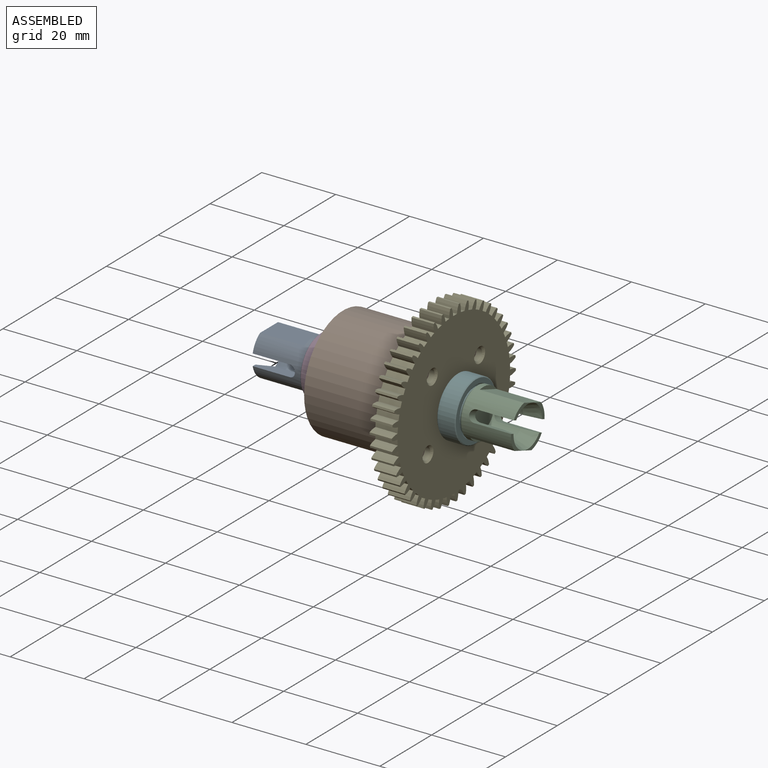
[diagram: assembled view]
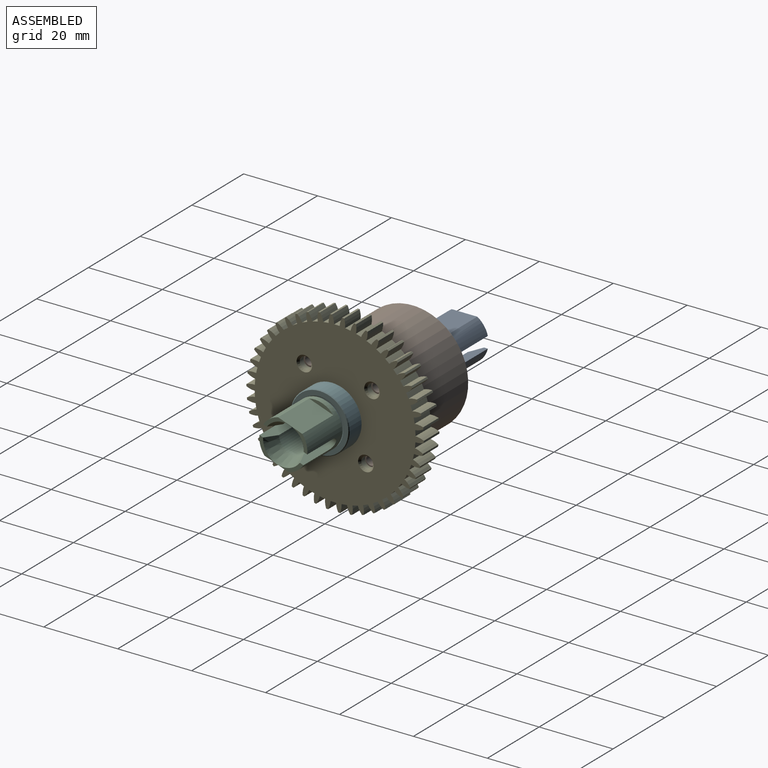
[diagram: assembled view, second angle]
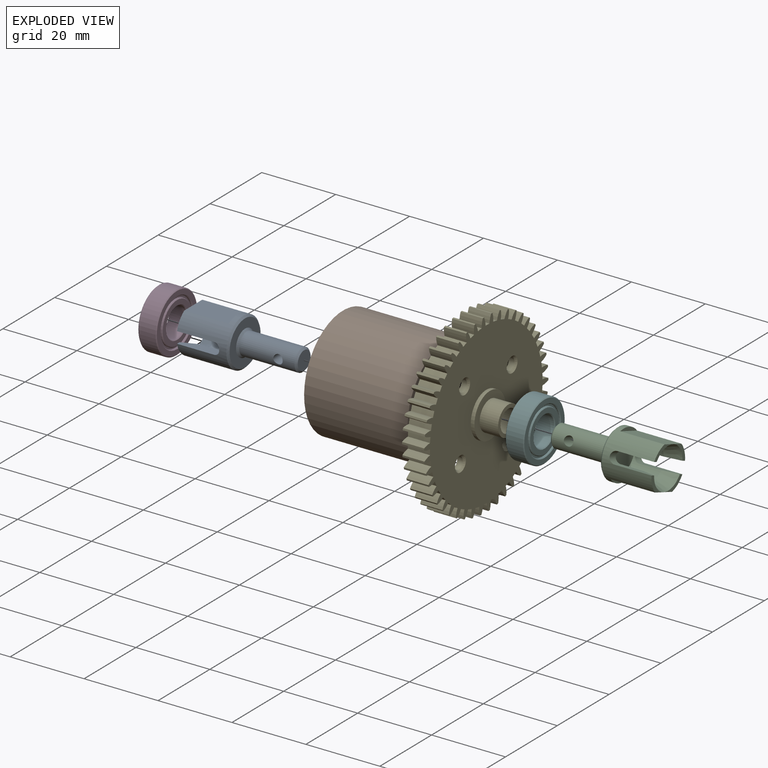
[diagram: exploded view]
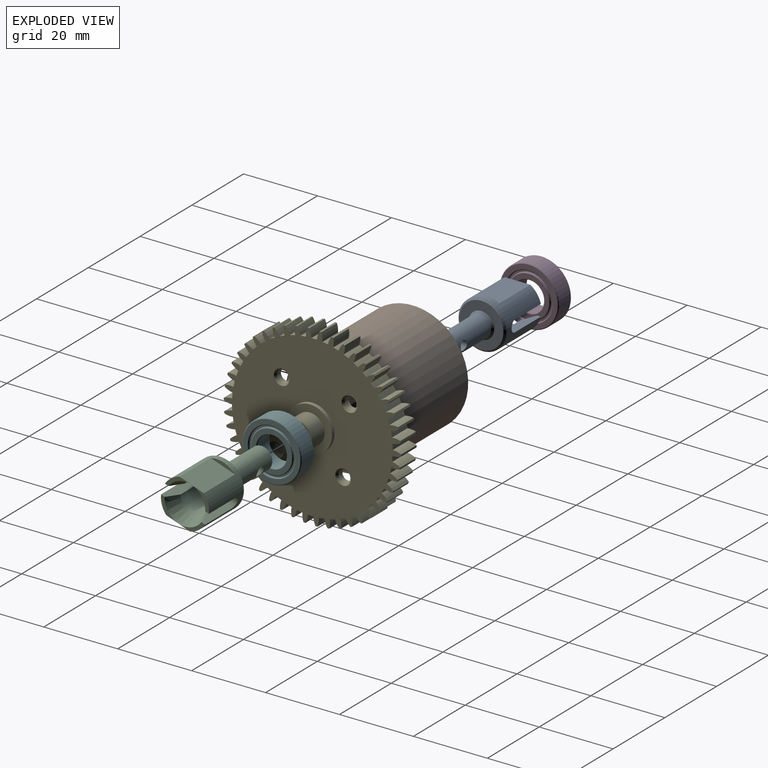
[diagram: exploded view, second angle]
ASSEMBLY  parts=6 mates=6
PART A: 26 faces, bbox 30.1x13.1x13.1 mm
  f0: plane 6.31x3.95mm, normal (1,0,0), area 5.5mm2, adj f3,f11,f12,f22
  f1: plane 6.31x3.95mm, normal (1,0,0), area 5.5mm2, adj f3,f11,f17,f22
  f2: plane 6.31x3.95mm, normal (1,0,0), area 5.5mm2, adj f3,f6,f13,f20
  f3: cylinder r=6.5mm len=13.5mm, axis (-1,0,0), area 305.8mm2, adj f0,f1,f2,f5,f12,f13,f14,f15
  f4: cylinder r=4mm len=8mm, axis (-1,0,0), area 155.2mm2, adj f6,f10,f11,f12,f13,f14,f15,f16
  f5: plane 6.31x3.95mm, normal (1,0,0), area 5.5mm2, adj f3,f6,f16,f20
  f6: cone r=5.5mm half-angle=20.6deg, axis (1,0,0), area 50mm2, adj f2,f4,f5,f13,f16
  f7: plane 12x12mm, normal (-1,0,0), area 74.6mm2, adj f23,f25
  f8: cylinder r=3mm len=15mm, axis (-1,0,0), area 272.6mm2, adj f18,f24,f25
  f9: plane 5x5mm, normal (-1,0,0), area 19.6mm2, adj f24
  f10: plane 8x8mm, normal (1,0,0), area 50.3mm2, adj f4
  f11: cone r=5.5mm half-angle=20.6deg, axis (1,0,0), area 50mm2, adj f0,f1,f4,f12,f17
  f12: plane 10.09x2.71mm, normal (0,0,1), area 23.1mm2, adj f0,f3,f4,f11,f14
  f13: plane 10.09x2.71mm, normal (0,0,-1), area 23.1mm2, adj f2,f3,f4,f6,f14
  f14: cylinder r=1.55mm len=3.1mm, axis (0,-1,0), area 12.8mm2, adj f3,f4,f12,f13
  f15: cylinder r=1.55mm len=3.1mm, axis (0,-1,0), area 12.8mm2, adj f3,f4,f16,f17
  f16: plane 10.09x2.71mm, normal (0,0,-1), area 23.1mm2, adj f3,f4,f5,f6,f15
  f17: plane 10.09x2.71mm, normal (0,0,1), area 23.1mm2, adj f1,f3,f4,f11,f15
  f18: cylinder r=1.26mm len=5.45mm, axis (0,-1,0), area 43mm2, adj f8
  f19: plane 6.93x1mm, normal (1,0,0), area 4.7mm2, adj f3,f20
  f20: plane 12x6.93mm, normal (0,0,1), area 83.1mm2, adj f2,f3,f5,f19
  f21: plane 6.93x1mm, normal (1,0,0), area 4.7mm2, adj f3,f22
  f22: plane 12x6.93mm, normal (0,0,-1), area 83.1mm2, adj f0,f1,f3,f21
  f23: cone r=6mm half-angle=45deg, axis (1,0,0), area 27.8mm2, adj f3,f7
  f24: cone r=2.5mm half-angle=45deg, axis (1,0,0), area 12.2mm2, adj f8,f9
  f25: cone r=3mm half-angle=45deg, axis (1,0,0), area 14.4mm2, adj f7,f8
PART B: 47 faces, bbox 34x30x30 mm
  f0: cylinder r=15mm len=30mm, axis (1,0,0), area 2638.9mm2, adj f9,f10
  f1: cone r=10.5mm half-angle=77.5deg, axis (1,0,0), area 239mm2, adj f9,f39
  f2: cylinder r=1.25mm len=26.61mm, axis (1,0,0), area 209mm2, adj f10,f41
  f3: cylinder r=1.25mm len=26.61mm, axis (1,0,0), area 209mm2, adj f10,f42
  f4: cylinder r=1.25mm len=26.61mm, axis (1,0,0), area 209mm2, adj f10,f43
  f5: cylinder r=1.25mm len=26.61mm, axis (1,0,0), area 209mm2, adj f10,f44
  f6: cylinder r=4mm len=8mm, axis (1,0,0), area 125.7mm2, adj f39,f45
  f7: cylinder r=5mm len=10mm, axis (1,0,0), area 56.5mm2, adj f40,f46
  f8: cylinder r=3mm len=6mm, axis (1,0,0), area 105.4mm2, adj f45,f46
  f9: plane 30x30mm, normal (-1,0,0), area 360.5mm2, adj f0,f1
  f10: plane 30x30mm, normal (1,0,0), area 270.1mm2, adj f0,f2,f3,f4,f5,f11,f12,f13
  f11: plane 26.61x5.08mm, normal (0,0,1), area 135.2mm2, adj f10,f12,f38,f40
  f12: plane 26.61x2.9mm, normal (0,-1,0), area 77.2mm2, adj f10,f11,f13,f40
  f13: plane 26.61x3mm, normal (0,0,1), area 79.8mm2, adj f10,f12,f14,f40
  f14: plane 26.61x5.12mm, normal (0,-1,0), area 136.1mm2, adj f10,f13,f15,f40
  f15: plane 26.61x3mm, normal (0,0,1), area 79.8mm2, adj f10,f14,f16,f40
  f16: plane 26.61x4mm, normal (0,-1,0), area 106.4mm2, adj f10,f15,f17,f40
  f17: plane 26.61x3mm, normal (0,0,-1), area 79.8mm2, adj f10,f16,f18,f40
  f18: plane 26.61x5.12mm, normal (0,-1,0), area 136.1mm2, adj f10,f17,f19,f40
  f19: plane 26.61x3mm, normal (0,0,-1), area 79.8mm2, adj f10,f18,f20,f40
  f20: plane 26.61x2.9mm, normal (0,-1,0), area 77.2mm2, adj f10,f19,f21,f40
  f21: plane 26.61x5.08mm, normal (0,0,-1), area 135.2mm2, adj f10,f20,f22,f40
  f22: plane 26.61x3mm, normal (0,-1,0), area 79.8mm2, adj f10,f21,f23,f40
  f23: plane 26.61x4mm, normal (0,0,-1), area 106.4mm2, adj f10,f22,f24,f40
  f24: plane 26.61x3mm, normal (0,1,0), area 79.8mm2, adj f10,f23,f25,f40
  f25: plane 26.61x5.08mm, normal (0,0,-1), area 135.2mm2, adj f10,f24,f26,f40
  f26: plane 26.61x2.9mm, normal (0,1,0), area 77.2mm2, adj f10,f25,f27,f40
  f27: plane 26.61x3mm, normal (0,0,-1), area 79.8mm2, adj f10,f26,f28,f40
  f28: plane 26.61x5.12mm, normal (0,1,0), area 136.1mm2, adj f10,f27,f29,f40
  f29: plane 26.61x3mm, normal (0,0,-1), area 79.8mm2, adj f10,f28,f30,f40
  f30: plane 26.61x4mm, normal (0,1,0), area 106.4mm2, adj f10,f29,f31,f40
  f31: plane 26.61x3mm, normal (0,0,1), area 79.8mm2, adj f10,f30,f32,f40
  f32: plane 26.61x5.12mm, normal (0,1,0), area 136.1mm2, adj f10,f31,f33,f40
  f33: plane 26.61x3mm, normal (0,0,1), area 79.8mm2, adj f10,f32,f34,f40
  f34: plane 26.61x2.9mm, normal (0,1,0), area 77.2mm2, adj f10,f33,f35,f40
  f35: plane 26.61x5.08mm, normal (0,0,1), area 135.2mm2, adj f10,f34,f36,f40
  f36: plane 26.61x3mm, normal (0,1,0), area 79.8mm2, adj f10,f35,f37,f40
  f37: plane 26.61x4mm, normal (0,0,1), area 106.4mm2, adj f10,f36,f38,f40
  f38: plane 26.61x3mm, normal (0,-1,0), area 79.8mm2, adj f10,f11,f37,f40
  f39: plane 12x12mm, normal (-1,0,0), area 62.8mm2, adj f1,f6
  f40: plane 26.16x26.03mm, normal (1,0,0), area 338.6mm2, adj f7,f11,f12,f13,f14,f15,f16,f17
  f41: plane 2.5x2.5mm, normal (1,0,0), area 4.9mm2, adj f2
  f42: plane 2.5x2.5mm, normal (1,0,0), area 4.9mm2, adj f3
  f43: plane 2.5x2.5mm, normal (1,0,0), area 4.9mm2, adj f4
  f44: plane 2.5x2.5mm, normal (1,0,0), area 4.9mm2, adj f5
  f45: plane 8x8mm, normal (-1,0,0), area 22mm2, adj f6,f8
  f46: plane 10x10mm, normal (1,0,0), area 50.3mm2, adj f7,f8
PART C: same geometry as A
PART D: 20 faces, bbox 16x5x16 mm
  f0: cylinder r=8mm len=16mm, axis (0,-1,0), area 231.2mm2, adj f1,f2
  f1: cone r=8mm half-angle=45deg, axis (0,1,0), area 14mm2, adj f0,f14
  f2: cone r=8mm half-angle=45deg, axis (0,-1,0), area 14mm2, adj f0,f15
  f3: cone r=6.45mm half-angle=45deg, axis (0,-1,0), area 11.3mm2, adj f5,f14
  f4: cone r=6.45mm half-angle=45deg, axis (0,1,0), area 11.3mm2, adj f6,f15
  f5: cylinder r=6.25mm len=12.5mm, axis (0,-1,0), area 11.8mm2, adj f3,f16
  f6: cylinder r=6.25mm len=12.5mm, axis (0,-1,0), area 11.8mm2, adj f4,f17
  f7: cylinder r=5.75mm len=11.5mm, axis (0,-1,0), area 10.8mm2, adj f9,f16
  f8: cylinder r=5.75mm len=11.5mm, axis (0,-1,0), area 10.8mm2, adj f10,f17
  f9: cone r=5.75mm half-angle=45deg, axis (0,1,0), area 10mm2, adj f7,f18
  f10: cone r=5.75mm half-angle=45deg, axis (0,-1,0), area 10mm2, adj f8,f19
  f11: cone r=4.2mm half-angle=45deg, axis (0,-1,0), area 7.3mm2, adj f13,f18
  f12: cone r=4.2mm half-angle=45deg, axis (0,1,0), area 7.3mm2, adj f13,f19
  f13: cylinder r=4mm len=8mm, axis (0,-1,0), area 115.6mm2, adj f11,f12
  f14: plane 15.6x15.6mm, normal (0,-1,0), area 60.4mm2, adj f1,f3
  f15: plane 15.6x15.6mm, normal (0,1,0), area 60.4mm2, adj f2,f4
  f16: plane 12.5x12.5mm, normal (0,-1,0), area 18.8mm2, adj f5,f7
  f17: plane 12.5x12.5mm, normal (0,1,0), area 18.8mm2, adj f6,f8
  f18: plane 11.1x11.1mm, normal (0,-1,0), area 41.4mm2, adj f9,f11
  f19: plane 11.1x11.1mm, normal (0,1,0), area 41.4mm2, adj f10,f12
PART E: 203 faces, bbox 12x47.9x48 mm
  f0: cylinder r=24mm len=6mm, axis (1,0,0), area 3.2mm2, adj f58,f64,f197,f202
  f1: cylinder r=24mm len=6mm, axis (1,0,0), area 3.2mm2, adj f58,f64,f194,f199
  f2: cylinder r=24mm len=6mm, axis (1,0,0), area 3.2mm2, adj f58,f64,f191,f196
  f3: cylinder r=24mm len=6mm, axis (1,0,0), area 3.2mm2, adj f58,f64,f188,f193
  f4: cylinder r=24mm len=6mm, axis (1,0,0), area 3.2mm2, adj f58,f64,f185,f190
  f5: cylinder r=24mm len=6mm, axis (1,0,0), area 3.2mm2, adj f58,f64,f182,f187
  f6: cylinder r=24mm len=6mm, axis (1,0,0), area 3.2mm2, adj f58,f64,f179,f184
  f7: cylinder r=24mm len=6mm, axis (1,0,0), area 3.2mm2, adj f58,f64,f176,f181
  f8: cylinder r=24mm len=6mm, axis (1,0,0), area 3.2mm2, adj f58,f64,f173,f178
  f9: cylinder r=24mm len=6mm, axis (1,0,0), area 3.2mm2, adj f58,f64,f170,f175
  f10: cylinder r=24mm len=6mm, axis (1,0,0), area 3.2mm2, adj f58,f64,f167,f172
  f11: cylinder r=24mm len=6mm, axis (1,0,0), area 3.2mm2, adj f58,f64,f164,f169
  f12: cylinder r=24mm len=6mm, axis (1,0,0), area 3.2mm2, adj f58,f64,f161,f166
  f13: cylinder r=24mm len=6mm, axis (1,0,0), area 3.2mm2, adj f58,f64,f158,f163
  f14: cylinder r=24mm len=6mm, axis (1,0,0), area 3.2mm2, adj f58,f64,f155,f160
  f15: cylinder r=24mm len=6mm, axis (1,0,0), area 3.2mm2, adj f58,f64,f152,f157
  f16: cylinder r=24mm len=6mm, axis (1,0,0), area 3.2mm2, adj f58,f64,f149,f154
  f17: cylinder r=24mm len=6mm, axis (1,0,0), area 3.2mm2, adj f58,f64,f146,f151
  f18: cylinder r=24mm len=6mm, axis (1,0,0), area 3.2mm2, adj f58,f64,f143,f148
  f19: cylinder r=24mm len=6mm, axis (1,0,0), area 3.2mm2, adj f58,f64,f140,f145
  f20: cylinder r=24mm len=6mm, axis (1,0,0), area 3.2mm2, adj f58,f64,f137,f142
  f21: cylinder r=24mm len=6mm, axis (1,0,0), area 3.2mm2, adj f58,f64,f134,f139
  f22: cylinder r=24mm len=6mm, axis (1,0,0), area 3.2mm2, adj f58,f64,f131,f136
  f23: cylinder r=24mm len=6mm, axis (1,0,0), area 3.2mm2, adj f58,f64,f128,f133
  f24: cylinder r=24mm len=6mm, axis (1,0,0), area 3.2mm2, adj f58,f64,f125,f130
  f25: cylinder r=24mm len=6mm, axis (1,0,0), area 3.2mm2, adj f58,f64,f122,f127
  f26: cylinder r=24mm len=6mm, axis (1,0,0), area 3.2mm2, adj f58,f64,f119,f124
  f27: cylinder r=24mm len=6mm, axis (1,0,0), area 3.2mm2, adj f58,f64,f116,f121
  f28: cylinder r=24mm len=6mm, axis (1,0,0), area 3.2mm2, adj f58,f64,f113,f118
  f29: cylinder r=24mm len=6mm, axis (1,0,0), area 3.2mm2, adj f58,f64,f110,f115
  f30: cylinder r=24mm len=6mm, axis (1,0,0), area 3.2mm2, adj f58,f64,f107,f112
  f31: cylinder r=24mm len=6mm, axis (1,0,0), area 3.2mm2, adj f58,f64,f104,f109
  f32: cylinder r=24mm len=6mm, axis (1,0,0), area 3.2mm2, adj f58,f64,f101,f106
  f33: cylinder r=24mm len=6mm, axis (1,0,0), area 3.2mm2, adj f58,f64,f98,f103
  f34: cylinder r=24mm len=6mm, axis (1,0,0), area 3.2mm2, adj f58,f64,f95,f100
  f35: cylinder r=24mm len=6mm, axis (1,0,0), area 3.2mm2, adj f58,f64,f92,f97
  f36: cylinder r=24mm len=6mm, axis (1,0,0), area 3.2mm2, adj f58,f64,f89,f94
  f37: cylinder r=24mm len=6mm, axis (1,0,0), area 3.2mm2, adj f58,f64,f86,f91
  f38: cylinder r=24mm len=6mm, axis (1,0,0), area 3.2mm2, adj f58,f64,f83,f88
  f39: cylinder r=24mm len=6mm, axis (1,0,0), area 3.2mm2, adj f58,f64,f80,f85
  f40: cylinder r=24mm len=6mm, axis (1,0,0), area 3.2mm2, adj f58,f64,f77,f82
  f41: cylinder r=24mm len=6mm, axis (1,0,0), area 3.2mm2, adj f58,f64,f74,f79
  f42: cylinder r=24mm len=6mm, axis (1,0,0), area 3.2mm2, adj f58,f64,f71,f76
  f43: cylinder r=24mm len=6mm, axis (1,0,0), area 3.2mm2, adj f58,f64,f68,f73
  f44: cylinder r=24mm len=6mm, axis (1,0,0), area 3.2mm2, adj f58,f64,f65,f70
  f45: plane 31x31mm, normal (-1,0,0), area 644.1mm2, adj f51,f52,f53,f54,f56,f63
  f46: cone r=2.1mm half-angle=45deg, axis (1,0,0), area 8.2mm2, adj f51,f58
  f47: cone r=2.1mm half-angle=45deg, axis (1,0,0), area 8.2mm2, adj f52,f58
  f48: cone r=2.1mm half-angle=45deg, axis (1,0,0), area 8.2mm2, adj f53,f58
  f49: cone r=2.1mm half-angle=45deg, axis (1,0,0), area 8.2mm2, adj f54,f58
  f50: cylinder r=6mm len=12mm, axis (1,0,0), area 37.7mm2, adj f58,f59
  f51: cylinder r=1.6mm len=3.2mm, axis (1,0,0), area 15.1mm2, adj f45,f46
  f52: cylinder r=1.6mm len=3.2mm, axis (1,0,0), area 15.1mm2, adj f45,f47
  f53: cylinder r=1.6mm len=3.2mm, axis (1,0,0), area 15.1mm2, adj f45,f48
  f54: cylinder r=1.6mm len=3.2mm, axis (1,0,0), area 15.1mm2, adj f45,f49
  f55: cylinder r=4mm len=8mm, axis (1,0,0), area 125.7mm2, adj f59,f60
  f56: cylinder r=5mm len=10mm, axis (1,0,0), area 56.5mm2, adj f45,f61
  f57: cylinder r=3mm len=6.2mm, axis (1,0,0), area 116.9mm2, adj f60,f61
  f58: plane 48x47.92mm, normal (1,0,0), area 1440mm2, adj f0,f1,f2,f3,f4,f5,f6,f7
  f59: plane 12x12mm, normal (1,0,0), area 62.8mm2, adj f50,f55
  f60: plane 8x8mm, normal (1,0,0), area 22mm2, adj f55,f57
  f61: plane 10x10mm, normal (-1,0,0), area 50.3mm2, adj f56,f57
  f62: cylinder r=24mm len=6mm, axis (1,0,0), area 3.2mm2, adj f58,f64,f67,f200
  f63: cylinder r=15.5mm len=31mm, axis (1,0,0), area 389.6mm2, adj f45,f64
  f64: plane 48x47.92mm, normal (-1,0,0), area 853.8mm2, adj f0,f1,f2,f3,f4,f5,f6,f7
  f65: cylinder r=5.5mm len=6mm, axis (-1,0,0), area 14mm2, adj f44,f58,f64,f66
  f66: cylinder r=21.75mm len=6mm, axis (-1,0,0), area 8.8mm2, adj f58,f64,f65,f67
  f67: cylinder r=5.5mm len=6mm, axis (-1,0,0), area 14mm2, adj f58,f62,f64,f66
  f68: cylinder r=5.5mm len=6mm, axis (-1,0,0), area 14mm2, adj f43,f58,f64,f69
  f69: cylinder r=21.75mm len=6mm, axis (-1,0,0), area 8.8mm2, adj f58,f64,f68,f70
  f70: cylinder r=5.5mm len=6mm, axis (-1,0,0), area 14mm2, adj f44,f58,f64,f69
  f71: cylinder r=5.5mm len=6mm, axis (-1,0,0), area 14mm2, adj f42,f58,f64,f72
  f72: cylinder r=21.75mm len=6mm, axis (-1,0,0), area 8.8mm2, adj f58,f64,f71,f73
  f73: cylinder r=5.5mm len=6mm, axis (-1,0,0), area 14mm2, adj f43,f58,f64,f72
  f74: cylinder r=5.5mm len=6mm, axis (-1,0,0), area 14mm2, adj f41,f58,f64,f75
  f75: cylinder r=21.75mm len=6mm, axis (-1,0,0), area 8.8mm2, adj f58,f64,f74,f76
  f76: cylinder r=5.5mm len=6mm, axis (-1,0,0), area 14mm2, adj f42,f58,f64,f75
  f77: cylinder r=5.5mm len=6mm, axis (-1,0,0), area 14mm2, adj f40,f58,f64,f78
  f78: cylinder r=21.75mm len=6mm, axis (-1,0,0), area 8.8mm2, adj f58,f64,f77,f79
  f79: cylinder r=5.5mm len=6mm, axis (-1,0,0), area 14mm2, adj f41,f58,f64,f78
  f80: cylinder r=5.5mm len=6mm, axis (-1,0,0), area 14mm2, adj f39,f58,f64,f81
  f81: cylinder r=21.75mm len=6mm, axis (-1,0,0), area 8.8mm2, adj f58,f64,f80,f82
  f82: cylinder r=5.5mm len=6mm, axis (-1,0,0), area 14mm2, adj f40,f58,f64,f81
  f83: cylinder r=5.5mm len=6mm, axis (-1,0,0), area 14mm2, adj f38,f58,f64,f84
  f84: cylinder r=21.75mm len=6mm, axis (-1,0,0), area 8.8mm2, adj f58,f64,f83,f85
  f85: cylinder r=5.5mm len=6mm, axis (-1,0,0), area 14mm2, adj f39,f58,f64,f84
  f86: cylinder r=5.5mm len=6mm, axis (-1,0,0), area 14mm2, adj f37,f58,f64,f87
  f87: cylinder r=21.75mm len=6mm, axis (-1,0,0), area 8.8mm2, adj f58,f64,f86,f88
  f88: cylinder r=5.5mm len=6mm, axis (-1,0,0), area 14mm2, adj f38,f58,f64,f87
  f89: cylinder r=5.5mm len=6mm, axis (-1,0,0), area 14mm2, adj f36,f58,f64,f90
  f90: cylinder r=21.75mm len=6mm, axis (-1,0,0), area 8.8mm2, adj f58,f64,f89,f91
  f91: cylinder r=5.5mm len=6mm, axis (-1,0,0), area 14mm2, adj f37,f58,f64,f90
  f92: cylinder r=5.5mm len=6mm, axis (-1,0,0), area 14mm2, adj f35,f58,f64,f93
  f93: cylinder r=21.75mm len=6mm, axis (-1,0,0), area 8.8mm2, adj f58,f64,f92,f94
  f94: cylinder r=5.5mm len=6mm, axis (-1,0,0), area 14mm2, adj f36,f58,f64,f93
  f95: cylinder r=5.5mm len=6mm, axis (-1,0,0), area 14mm2, adj f34,f58,f64,f96
  f96: cylinder r=21.75mm len=6mm, axis (-1,0,0), area 8.8mm2, adj f58,f64,f95,f97
  f97: cylinder r=5.5mm len=6mm, axis (-1,0,0), area 14mm2, adj f35,f58,f64,f96
  f98: cylinder r=5.5mm len=6mm, axis (-1,0,0), area 14mm2, adj f33,f58,f64,f99
  f99: cylinder r=21.75mm len=6mm, axis (-1,0,0), area 8.8mm2, adj f58,f64,f98,f100
  f100: cylinder r=5.5mm len=6mm, axis (-1,0,0), area 14mm2, adj f34,f58,f64,f99
  f101: cylinder r=5.5mm len=6mm, axis (-1,0,0), area 14mm2, adj f32,f58,f64,f102
  f102: cylinder r=21.75mm len=6mm, axis (-1,0,0), area 8.8mm2, adj f58,f64,f101,f103
  f103: cylinder r=5.5mm len=6mm, axis (-1,0,0), area 14mm2, adj f33,f58,f64,f102
  f104: cylinder r=5.5mm len=6mm, axis (-1,0,0), area 14mm2, adj f31,f58,f64,f105
  f105: cylinder r=21.75mm len=6mm, axis (-1,0,0), area 8.8mm2, adj f58,f64,f104,f106
  f106: cylinder r=5.5mm len=6mm, axis (-1,0,0), area 14mm2, adj f32,f58,f64,f105
  f107: cylinder r=5.5mm len=6mm, axis (-1,0,0), area 14mm2, adj f30,f58,f64,f108
  f108: cylinder r=21.75mm len=6mm, axis (-1,0,0), area 8.8mm2, adj f58,f64,f107,f109
  f109: cylinder r=5.5mm len=6mm, axis (-1,0,0), area 14mm2, adj f31,f58,f64,f108
  f110: cylinder r=5.5mm len=6mm, axis (-1,0,0), area 14mm2, adj f29,f58,f64,f111
  f111: cylinder r=21.75mm len=6mm, axis (-1,0,0), area 8.8mm2, adj f58,f64,f110,f112
  f112: cylinder r=5.5mm len=6mm, axis (-1,0,0), area 14mm2, adj f30,f58,f64,f111
  f113: cylinder r=5.5mm len=6mm, axis (-1,0,0), area 14mm2, adj f28,f58,f64,f114
  f114: cylinder r=21.75mm len=6mm, axis (-1,0,0), area 8.8mm2, adj f58,f64,f113,f115
  f115: cylinder r=5.5mm len=6mm, axis (-1,0,0), area 14mm2, adj f29,f58,f64,f114
  f116: cylinder r=5.5mm len=6mm, axis (-1,0,0), area 14mm2, adj f27,f58,f64,f117
  f117: cylinder r=21.75mm len=6mm, axis (-1,0,0), area 8.8mm2, adj f58,f64,f116,f118
  f118: cylinder r=5.5mm len=6mm, axis (-1,0,0), area 14mm2, adj f28,f58,f64,f117
  f119: cylinder r=5.5mm len=6mm, axis (-1,0,0), area 14mm2, adj f26,f58,f64,f120
  f120: cylinder r=21.75mm len=6mm, axis (-1,0,0), area 8.8mm2, adj f58,f64,f119,f121
  f121: cylinder r=5.5mm len=6mm, axis (-1,0,0), area 14mm2, adj f27,f58,f64,f120
  f122: cylinder r=5.5mm len=6mm, axis (-1,0,0), area 14mm2, adj f25,f58,f64,f123
  f123: cylinder r=21.75mm len=6mm, axis (-1,0,0), area 8.8mm2, adj f58,f64,f122,f124
  f124: cylinder r=5.5mm len=6mm, axis (-1,0,0), area 14mm2, adj f26,f58,f64,f123
  f125: cylinder r=5.5mm len=6mm, axis (-1,0,0), area 14mm2, adj f24,f58,f64,f126
  f126: cylinder r=21.75mm len=6mm, axis (-1,0,0), area 8.8mm2, adj f58,f64,f125,f127
  f127: cylinder r=5.5mm len=6mm, axis (-1,0,0), area 14mm2, adj f25,f58,f64,f126
  f128: cylinder r=5.5mm len=6mm, axis (-1,0,0), area 14mm2, adj f23,f58,f64,f129
  f129: cylinder r=21.75mm len=6mm, axis (-1,0,0), area 8.8mm2, adj f58,f64,f128,f130
  f130: cylinder r=5.5mm len=6mm, axis (-1,0,0), area 14mm2, adj f24,f58,f64,f129
  f131: cylinder r=5.5mm len=6mm, axis (-1,0,0), area 14mm2, adj f22,f58,f64,f132
  f132: cylinder r=21.75mm len=6mm, axis (-1,0,0), area 8.8mm2, adj f58,f64,f131,f133
  f133: cylinder r=5.5mm len=6mm, axis (-1,0,0), area 14mm2, adj f23,f58,f64,f132
  f134: cylinder r=5.5mm len=6mm, axis (-1,0,0), area 14mm2, adj f21,f58,f64,f135
  f135: cylinder r=21.75mm len=6mm, axis (-1,0,0), area 8.8mm2, adj f58,f64,f134,f136
  f136: cylinder r=5.5mm len=6mm, axis (-1,0,0), area 14mm2, adj f22,f58,f64,f135
  f137: cylinder r=5.5mm len=6mm, axis (-1,0,0), area 14mm2, adj f20,f58,f64,f138
  f138: cylinder r=21.75mm len=6mm, axis (-1,0,0), area 8.8mm2, adj f58,f64,f137,f139
  f139: cylinder r=5.5mm len=6mm, axis (-1,0,0), area 14mm2, adj f21,f58,f64,f138
  f140: cylinder r=5.5mm len=6mm, axis (-1,0,0), area 14mm2, adj f19,f58,f64,f141
  f141: cylinder r=21.75mm len=6mm, axis (-1,0,0), area 8.8mm2, adj f58,f64,f140,f142
  f142: cylinder r=5.5mm len=6mm, axis (-1,0,0), area 14mm2, adj f20,f58,f64,f141
  f143: cylinder r=5.5mm len=6mm, axis (-1,0,0), area 14mm2, adj f18,f58,f64,f144
  f144: cylinder r=21.75mm len=6mm, axis (-1,0,0), area 8.8mm2, adj f58,f64,f143,f145
  f145: cylinder r=5.5mm len=6mm, axis (-1,0,0), area 14mm2, adj f19,f58,f64,f144
  f146: cylinder r=5.5mm len=6mm, axis (-1,0,0), area 14mm2, adj f17,f58,f64,f147
  f147: cylinder r=21.75mm len=6mm, axis (-1,0,0), area 8.8mm2, adj f58,f64,f146,f148
  f148: cylinder r=5.5mm len=6mm, axis (-1,0,0), area 14mm2, adj f18,f58,f64,f147
  f149: cylinder r=5.5mm len=6mm, axis (-1,0,0), area 14mm2, adj f16,f58,f64,f150
  f150: cylinder r=21.75mm len=6mm, axis (-1,0,0), area 8.8mm2, adj f58,f64,f149,f151
  f151: cylinder r=5.5mm len=6mm, axis (-1,0,0), area 14mm2, adj f17,f58,f64,f150
  f152: cylinder r=5.5mm len=6mm, axis (-1,0,0), area 14mm2, adj f15,f58,f64,f153
  f153: cylinder r=21.75mm len=6mm, axis (-1,0,0), area 8.8mm2, adj f58,f64,f152,f154
  f154: cylinder r=5.5mm len=6mm, axis (-1,0,0), area 14mm2, adj f16,f58,f64,f153
  f155: cylinder r=5.5mm len=6mm, axis (-1,0,0), area 14mm2, adj f14,f58,f64,f156
  f156: cylinder r=21.75mm len=6mm, axis (-1,0,0), area 8.8mm2, adj f58,f64,f155,f157
  f157: cylinder r=5.5mm len=6mm, axis (-1,0,0), area 14mm2, adj f15,f58,f64,f156
  f158: cylinder r=5.5mm len=6mm, axis (-1,0,0), area 14mm2, adj f13,f58,f64,f159
  f159: cylinder r=21.75mm len=6mm, axis (-1,0,0), area 8.8mm2, adj f58,f64,f158,f160
  f160: cylinder r=5.5mm len=6mm, axis (-1,0,0), area 14mm2, adj f14,f58,f64,f159
  f161: cylinder r=5.5mm len=6mm, axis (-1,0,0), area 14mm2, adj f12,f58,f64,f162
  f162: cylinder r=21.75mm len=6mm, axis (-1,0,0), area 8.8mm2, adj f58,f64,f161,f163
  f163: cylinder r=5.5mm len=6mm, axis (-1,0,0), area 14mm2, adj f13,f58,f64,f162
  f164: cylinder r=5.5mm len=6mm, axis (-1,0,0), area 14mm2, adj f11,f58,f64,f165
  f165: cylinder r=21.75mm len=6mm, axis (-1,0,0), area 8.8mm2, adj f58,f64,f164,f166
  f166: cylinder r=5.5mm len=6mm, axis (-1,0,0), area 14mm2, adj f12,f58,f64,f165
  f167: cylinder r=5.5mm len=6mm, axis (-1,0,0), area 14mm2, adj f10,f58,f64,f168
  f168: cylinder r=21.75mm len=6mm, axis (-1,0,0), area 8.8mm2, adj f58,f64,f167,f169
  f169: cylinder r=5.5mm len=6mm, axis (-1,0,0), area 14mm2, adj f11,f58,f64,f168
  f170: cylinder r=5.5mm len=6mm, axis (-1,0,0), area 14mm2, adj f9,f58,f64,f171
  f171: cylinder r=21.75mm len=6mm, axis (-1,0,0), area 8.8mm2, adj f58,f64,f170,f172
  f172: cylinder r=5.5mm len=6mm, axis (-1,0,0), area 14mm2, adj f10,f58,f64,f171
  f173: cylinder r=5.5mm len=6mm, axis (-1,0,0), area 14mm2, adj f8,f58,f64,f174
  f174: cylinder r=21.75mm len=6mm, axis (-1,0,0), area 8.8mm2, adj f58,f64,f173,f175
  f175: cylinder r=5.5mm len=6mm, axis (-1,0,0), area 14mm2, adj f9,f58,f64,f174
  f176: cylinder r=5.5mm len=6mm, axis (-1,0,0), area 14mm2, adj f7,f58,f64,f177
  f177: cylinder r=21.75mm len=6mm, axis (-1,0,0), area 8.8mm2, adj f58,f64,f176,f178
  f178: cylinder r=5.5mm len=6mm, axis (-1,0,0), area 14mm2, adj f8,f58,f64,f177
  f179: cylinder r=5.5mm len=6mm, axis (-1,0,0), area 14mm2, adj f6,f58,f64,f180
  f180: cylinder r=21.75mm len=6mm, axis (-1,0,0), area 8.8mm2, adj f58,f64,f179,f181
  f181: cylinder r=5.5mm len=6mm, axis (-1,0,0), area 14mm2, adj f7,f58,f64,f180
  f182: cylinder r=5.5mm len=6mm, axis (-1,0,0), area 14mm2, adj f5,f58,f64,f183
  f183: cylinder r=21.75mm len=6mm, axis (-1,0,0), area 8.8mm2, adj f58,f64,f182,f184
  f184: cylinder r=5.5mm len=6mm, axis (-1,0,0), area 14mm2, adj f6,f58,f64,f183
  f185: cylinder r=5.5mm len=6mm, axis (-1,0,0), area 14mm2, adj f4,f58,f64,f186
  f186: cylinder r=21.75mm len=6mm, axis (-1,0,0), area 8.8mm2, adj f58,f64,f185,f187
  f187: cylinder r=5.5mm len=6mm, axis (-1,0,0), area 14mm2, adj f5,f58,f64,f186
  f188: cylinder r=5.5mm len=6mm, axis (-1,0,0), area 14mm2, adj f3,f58,f64,f189
  f189: cylinder r=21.75mm len=6mm, axis (-1,0,0), area 8.8mm2, adj f58,f64,f188,f190
  f190: cylinder r=5.5mm len=6mm, axis (-1,0,0), area 14mm2, adj f4,f58,f64,f189
  f191: cylinder r=5.5mm len=6mm, axis (-1,0,0), area 14mm2, adj f2,f58,f64,f192
  f192: cylinder r=21.75mm len=6mm, axis (-1,0,0), area 8.8mm2, adj f58,f64,f191,f193
  f193: cylinder r=5.5mm len=6mm, axis (-1,0,0), area 14mm2, adj f3,f58,f64,f192
  f194: cylinder r=5.5mm len=6mm, axis (-1,0,0), area 14mm2, adj f1,f58,f64,f195
  f195: cylinder r=21.75mm len=6mm, axis (-1,0,0), area 8.8mm2, adj f58,f64,f194,f196
  f196: cylinder r=5.5mm len=6mm, axis (-1,0,0), area 14mm2, adj f2,f58,f64,f195
  f197: cylinder r=5.5mm len=6mm, axis (-1,0,0), area 14mm2, adj f0,f58,f64,f198
  f198: cylinder r=21.75mm len=6mm, axis (-1,0,0), area 8.8mm2, adj f58,f64,f197,f199
  f199: cylinder r=5.5mm len=6mm, axis (-1,0,0), area 14mm2, adj f1,f58,f64,f198
  f200: cylinder r=5.5mm len=6mm, axis (-1,0,0), area 14mm2, adj f58,f62,f64,f201
  f201: cylinder r=21.75mm len=6mm, axis (-1,0,0), area 8.8mm2, adj f58,f64,f200,f202
  f202: cylinder r=5.5mm len=6mm, axis (-1,0,0), area 14mm2, adj f0,f58,f64,f201
PART F: same geometry as D
PLACE A rot(axis=(0,-1,0),180deg) t=(-23,0,0)mm
PLACE B rot(axis=(-1,0,0),5.3deg) t=(-14,0,0)mm
PLACE C rot(axis=(-1,0,0),19.5deg) t=(25,0,0)mm
PLACE D rot(axis=(-0.7,-0.7,-0.18),159.2deg) t=(-17.5,0,0)mm
PLACE E rot(axis=(-1,0,0),5.2deg) t=(14,0,0)mm
PLACE F rot(axis=(-0.71,-0.71,0),180deg) t=(19.5,0,0)mm
MATE revolute E.f50 <-> B.f0  axis (-1,0,0) through (14,0,0)mm
MATE revolute F.f0 <-> C.f3  axis (1,0,0) through (22,0,0)mm
MATE revolute D.f0 <-> B.f7  axis (-1,0,0) through (-20,0,0)mm
MATE revolute A.f3 <-> B.f7  axis (1,0,0) through (-20,0,0)mm
MATE revolute F.f0 <-> E.f50  axis (-1,0,0) through (17,0,0)mm
MATE cylindrical B.f4 <-> E.f48  axis (1,0,0) through (14,9.99,8.32)mm
